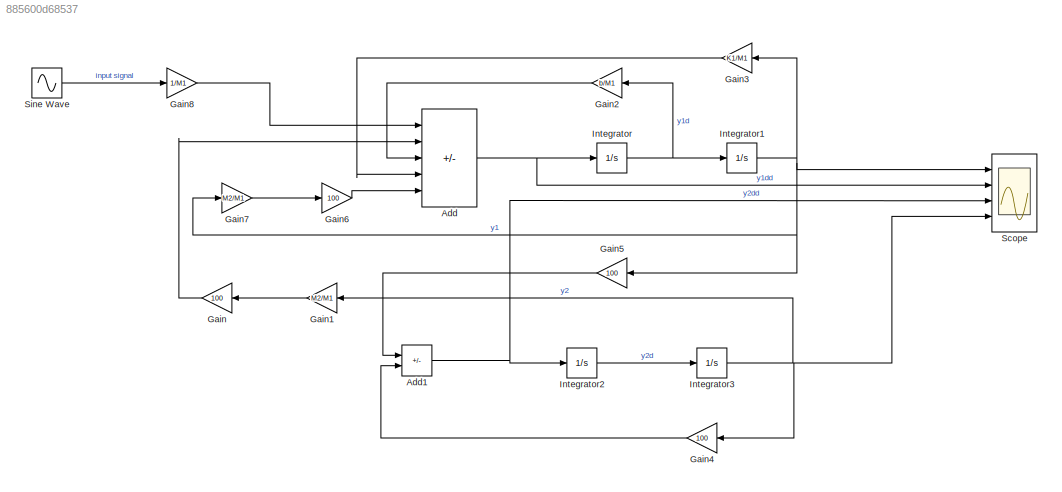
MODEL slx_885600d68537
KIND model
CONFIG AbsTol = auto
CONFIG EnableMultiTasking = off
CONFIG FixedStep = auto
CONFIG MaxStep = auto
CONFIG MinStep = auto
CONFIG PostLoadFcn =  b=50;\nK1=50;\nM1=100;\nM2=30;\nu=5/pi;
CONFIG RelTol = 1e-3
CONFIG SampleTimeConstraint = Unconstrained
CONFIG Solver = VariableStepAuto
CONFIG SolverName = VariableStepAuto
CONFIG StartTime = 0.0
CONFIG StopTime = 10.0
BLOCK [Sum] Add
  IconShape = rectangular
  Inputs = ++---
  Ports = [5, 1]
BLOCK [Sum] Add1
  IconShape = rectangular
  Inputs = +-
  Ports = [2, 1]
BLOCK [Gain] Gain
  Gain = 100
  NameLocation = top
BLOCK [Gain] Gain1
  Gain = M2/M1
  NameLocation = top
BLOCK [Gain] Gain2
  Gain = b/M1
  NameLocation = top
BLOCK [Gain] Gain3
  Gain = K1/M1
  NameLocation = top
BLOCK [Gain] Gain4
  Gain = 100
  NameLocation = top
BLOCK [Gain] Gain5
  Gain = 100
  NameLocation = top
BLOCK [Gain] Gain6
  Gain = 100
BLOCK [Gain] Gain7
  Gain = M2/M1
BLOCK [Gain] Gain8
  Gain = 1/M1
BLOCK [Integrator] Integrator
  Ports = [1, 1]
BLOCK [Integrator] Integrator1
  Ports = [1, 1]
BLOCK [Integrator] Integrator2
  Ports = [1, 1]
BLOCK [Integrator] Integrator3
  Ports = [1, 1]
BLOCK [Scope] Scope
  Floating = off
  NumInputPorts = 4
  Ports = [4]
  ScopeSpecificationString = Simulink.scopes.TimeScopeBlockCfg('CurrentConfiguration', extmgr.ConfigurationSet(extmgr.Configuration('Core','General UI',true),extmgr.Configuration('Core','Source UI',true),extmgr.Configuration('Sources','WiredSimulink',true),extmgr.Configuration('Visuals','Time Domain',true,'SerializedDisplays',{struct('MinYLimReal','-0.00097','MaxYLimReal','0.00206','YLabelReal','','MinYLimMag','0.00000','MaxY...<+3394ch>
BLOCK [Sin] Sine Wave
  Amplitude = 2
  Frequency = 10
  Ports = [0, 1]
  SampleTime = 0
NET Add1:1 -> Integrator2:1, Scope:3
NET Add:1 -> Integrator:1, Scope:2
LINE Gain1:1 -> Gain:1
LINE Gain2:1 -> Add:3
LINE Gain3:1 -> Add:4
LINE Gain4:1 -> Add1:2
LINE Gain5:1 -> Add1:1
LINE Gain6:1 -> Add:5
LINE Gain7:1 -> Gain6:1
LINE Gain8:1 -> Add:1
LINE Gain:1 -> Add:2
NET Integrator1:1 -> Gain3:1, Gain5:1, Gain7:1, Scope:1
LINE Integrator2:1 -> Integrator3:1
NET Integrator3:1 -> Gain1:1, Gain4:1, Scope:4
NET Integrator:1 -> Gain2:1, Integrator1:1
LINE Sine Wave:1 -> Gain8:1
note: NET lines group one-source signal fan-out (src -> all destinations, sorted); 1:1 wires keep LINE
